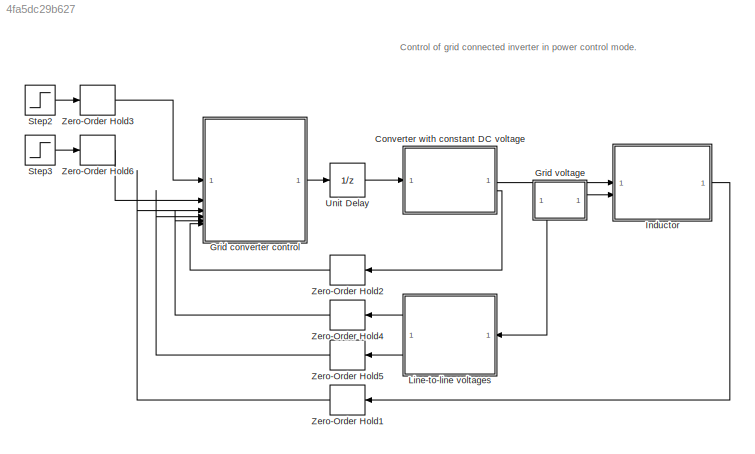
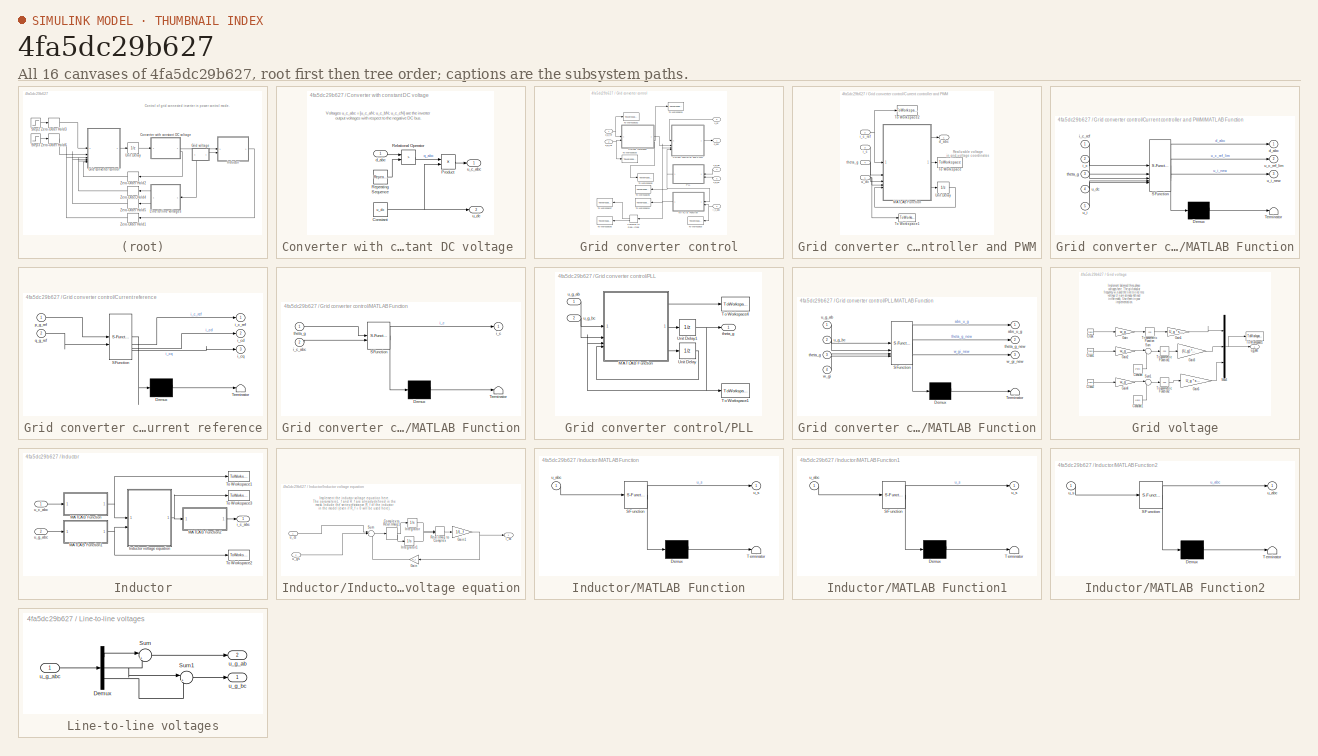
[diagram: thumbnail index - all 16 canvases of the model, root first then tree order]
MODEL slx_4fa5dc29b627
KIND model
CONFIG AbsTol = 1e-3
CONFIG EnableMultiTasking = on
CONFIG FixedStep = auto
CONFIG MaxStep = T_s
CONFIG MinStep = auto
CONFIG RelTol = 1e-3
CONFIG SampleTimeConstraint = Unconstrained
CONFIG SolverName = ode45
CONFIG StartTime = 0
CONFIG StopTime = .1
BLOCK [SubSystem] Converter with constant DC voltage 
BLOCK [Constant] Converter with constant DC voltage /Constant
  Value = u_dc
BLOCK [Product] Converter with constant DC voltage /Product
BLOCK [RelationalOperator] Converter with constant DC voltage /Relational Operator
  InputSameDT = off
  Operator = >
  OutDataTypeStr = 'double'
BLOCK [Reference] Converter with constant DC voltage /Repeating Sequence  REF=simulink/Sources/Repeating
Sequence
  SourceBlock = simulink/Sources/Repeating\nSequence
  SourceType = Repeating table
BLOCK [Inport] Converter with constant DC voltage /d_abc
BLOCK [Outport] Converter with constant DC voltage /u_c_abc
BLOCK [Outport] Converter with constant DC voltage /u_dc
  Port = 2
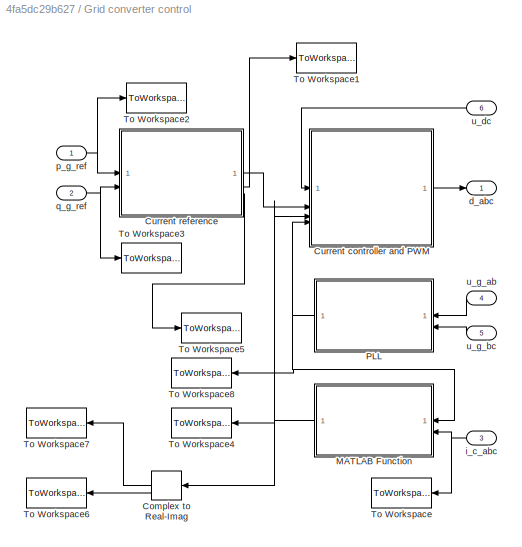
BLOCK [SubSystem] Grid converter control
BLOCK [ComplexToRealImag] Grid converter control/Complex to Real-Imag
  NameLocation = top
BLOCK [SubSystem] Grid converter control/Current controller and PWM
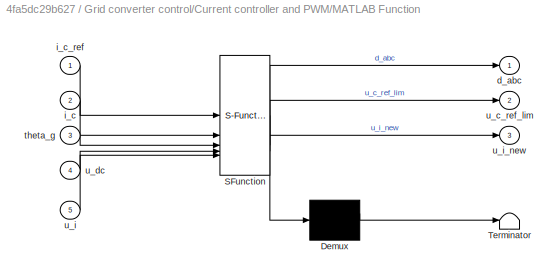
BLOCK [SubSystem] Grid converter control/Current controller and PWM/MATLAB Function
  ErrorFcn = Stateflow.Translate.translate
  PermitHierarchicalResolution = ExplicitOnly
  SFBlockType = MATLAB Function
  TreatAsAtomicUnit = on
BLOCK [Demux] Grid converter control/Current controller and PWM/MATLAB Function/ Demux 
  Outputs = 1
BLOCK [S-Function] Grid converter control/Current controller and PWM/MATLAB Function/ SFunction 
  EnableBusSupport = on
  FunctionName = sf_sfun
  Parameters = L_f,T_s,alpha_c,w_g
  PortCounts = [5 4]
  SFcnIsStateOwnerBlock = off
  SFunctionDeploymentMode = off
  Tag = Stateflow S-Function 1
BLOCK [Terminator] Grid converter control/Current controller and PWM/MATLAB Function/ Terminator 
BLOCK [Outport] Grid converter control/Current controller and PWM/MATLAB Function/d_abc
BLOCK [Inport] Grid converter control/Current controller and PWM/MATLAB Function/i_c
  Port = 2
BLOCK [Inport] Grid converter control/Current controller and PWM/MATLAB Function/i_c_ref
BLOCK [Inport] Grid converter control/Current controller and PWM/MATLAB Function/theta_g
  Port = 3
BLOCK [Outport] Grid converter control/Current controller and PWM/MATLAB Function/u_c_ref_lim
  Port = 2
BLOCK [Inport] Grid converter control/Current controller and PWM/MATLAB Function/u_dc
  Port = 4
BLOCK [Inport] Grid converter control/Current controller and PWM/MATLAB Function/u_i
  Port = 5
BLOCK [Outport] Grid converter control/Current controller and PWM/MATLAB Function/u_i_new
  Port = 3
BLOCK [ToWorkspace] Grid converter control/Current controller and PWM/To Workspace
  FixptAsFi = on
  MaxDataPoints = inf
  SampleTime = -1
  SaveFormat = Timeseries
  VariableName = u_c_ref_lim
BLOCK [ToWorkspace] Grid converter control/Current controller and PWM/To Workspace1
  MaxDataPoints = inf
  SampleTime = -1
  SaveFormat = Timeseries
  VariableName = u_dc
BLOCK [ToWorkspace] Grid converter control/Current controller and PWM/To Workspace2
  FixptAsFi = on
  MaxDataPoints = inf
  SampleTime = -1
  SaveFormat = Timeseries
  VariableName = i_c_ref
BLOCK [UnitDelay] Grid converter control/Current controller and PWM/Unit Delay
  HasFrameUpgradeWarning = on
  InitialCondition = u_gN
  SampleTime = -1
BLOCK [Outport] Grid converter control/Current controller and PWM/d_abc
  PortDimensions = 3
BLOCK [Inport] Grid converter control/Current controller and PWM/i_c
  Port = 3
BLOCK [Inport] Grid converter control/Current controller and PWM/i_c_ref
  Port = 2
BLOCK [Inport] Grid converter control/Current controller and PWM/theta_g
  Port = 4
BLOCK [Inport] Grid converter control/Current controller and PWM/u_dc
BLOCK [SubSystem] Grid converter control/Current reference
  ErrorFcn = Stateflow.Translate.translate
  PermitHierarchicalResolution = ExplicitOnly
  SFBlockType = MATLAB Function
  TreatAsAtomicUnit = on
BLOCK [Demux] Grid converter control/Current reference/ Demux 
  Outputs = 1
BLOCK [S-Function] Grid converter control/Current reference/ SFunction 
  EnableBusSupport = on
  FunctionName = sf_sfun
  Parameters = u_gN
  PortCounts = [2 4]
  SFcnIsStateOwnerBlock = off
  SFunctionDeploymentMode = off
  Tag = Stateflow S-Function 3
BLOCK [Terminator] Grid converter control/Current reference/ Terminator 
BLOCK [Outport] Grid converter control/Current reference/i_c_ref
BLOCK [Outport] Grid converter control/Current reference/i_cd
  Port = 2
BLOCK [Outport] Grid converter control/Current reference/i_cq
  Port = 3
BLOCK [Inport] Grid converter control/Current reference/p_g_ref
BLOCK [Inport] Grid converter control/Current reference/q_g_ref
  Port = 2
BLOCK [SubSystem] Grid converter control/MATLAB Function
  ErrorFcn = Stateflow.Translate.translate
  PermitHierarchicalResolution = ExplicitOnly
  SFBlockType = MATLAB Function
  TreatAsAtomicUnit = on
BLOCK [Demux] Grid converter control/MATLAB Function/ Demux 
  Outputs = 1
BLOCK [S-Function] Grid converter control/MATLAB Function/ SFunction 
  EnableBusSupport = on
  FunctionName = sf_sfun
  PortCounts = [2 2]
  SFcnIsStateOwnerBlock = off
  SFunctionDeploymentMode = off
  Tag = Stateflow S-Function 4
BLOCK [Terminator] Grid converter control/MATLAB Function/ Terminator 
BLOCK [Outport] Grid converter control/MATLAB Function/i_c
BLOCK [Inport] Grid converter control/MATLAB Function/i_c_abc
  Port = 2
BLOCK [Inport] Grid converter control/MATLAB Function/theta_g
BLOCK [SubSystem] Grid converter control/PLL
BLOCK [SubSystem] Grid converter control/PLL/MATLAB Function
  ErrorFcn = Stateflow.Translate.translate
  PermitHierarchicalResolution = ExplicitOnly
  SFBlockType = MATLAB Function
  TreatAsAtomicUnit = on
BLOCK [Demux] Grid converter control/PLL/MATLAB Function/ Demux 
  Outputs = 1
BLOCK [S-Function] Grid converter control/PLL/MATLAB Function/ SFunction 
  EnableBusSupport = on
  FunctionName = sf_sfun
  Parameters = T_s,u_gN,w0_pll
  PortCounts = [4 4]
  SFcnIsStateOwnerBlock = off
  SFunctionDeploymentMode = off
  Tag = Stateflow S-Function 2
BLOCK [Terminator] Grid converter control/PLL/MATLAB Function/ Terminator 
BLOCK [Outport] Grid converter control/PLL/MATLAB Function/abs_u_g
BLOCK [Inport] Grid converter control/PLL/MATLAB Function/theta_g
  Port = 3
BLOCK [Outport] Grid converter control/PLL/MATLAB Function/theta_g_new
  Port = 2
BLOCK [Inport] Grid converter control/PLL/MATLAB Function/u_g_ab
BLOCK [Inport] Grid converter control/PLL/MATLAB Function/u_g_bc
  Port = 2
BLOCK [Inport] Grid converter control/PLL/MATLAB Function/w_gi
  Port = 4
BLOCK [Outport] Grid converter control/PLL/MATLAB Function/w_gi_new
  Port = 3
BLOCK [ToWorkspace] Grid converter control/PLL/To Workspace1
  MaxDataPoints = inf
  SampleTime = -1
  SaveFormat = Timeseries
  VariableName = theta_ge
BLOCK [ToWorkspace] Grid converter control/PLL/To Workspace4
  FixptAsFi = on
  MaxDataPoints = inf
  SampleTime = -1
  SaveFormat = Timeseries
  VariableName = abs_u_g
BLOCK [UnitDelay] Grid converter control/PLL/Unit Delay
  HasFrameUpgradeWarning = on
  InitialCondition = w_g
  SampleTime = -1
BLOCK [UnitDelay] Grid converter control/PLL/Unit Delay1
  HasFrameUpgradeWarning = on
  SampleTime = -1
BLOCK [Outport] Grid converter control/PLL/theta_g
BLOCK [Inport] Grid converter control/PLL/u_g_ab
BLOCK [Inport] Grid converter control/PLL/u_g_bc
  Port = 2
BLOCK [ToWorkspace] Grid converter control/To Workspace
  FixptAsFi = on
  MaxDataPoints = inf
  SampleTime = -1
  SaveFormat = Timeseries
  VariableName = i_c_abc
BLOCK [ToWorkspace] Grid converter control/To Workspace1
  FixptAsFi = on
  MaxDataPoints = inf
  SampleTime = -1
  SaveFormat = Timeseries
  VariableName = i_cd_ref
BLOCK [ToWorkspace] Grid converter control/To Workspace2
  FixptAsFi = on
  MaxDataPoints = inf
  SampleTime = -1
  SaveFormat = Timeseries
  VariableName = p_g_ref
BLOCK [ToWorkspace] Grid converter control/To Workspace3
  FixptAsFi = on
  MaxDataPoints = inf
  SampleTime = -1
  SaveFormat = Timeseries
  VariableName = q_g_ref
BLOCK [ToWorkspace] Grid converter control/To Workspace4
  FixptAsFi = on
  MaxDataPoints = inf
  SampleTime = -1
  SaveFormat = Timeseries
  VariableName = i_c
BLOCK [ToWorkspace] Grid converter control/To Workspace5
  FixptAsFi = on
  MaxDataPoints = inf
  SampleTime = -1
  SaveFormat = Timeseries
  VariableName = i_cq_ref
BLOCK [ToWorkspace] Grid converter control/To Workspace6
  FixptAsFi = on
  MaxDataPoints = inf
  NameLocation = top
  SampleTime = -1
  SaveFormat = Timeseries
  VariableName = i_cq
BLOCK [ToWorkspace] Grid converter control/To Workspace7
  FixptAsFi = on
  MaxDataPoints = inf
  NameLocation = top
  SampleTime = -1
  SaveFormat = Timeseries
  VariableName = i_cd
BLOCK [ToWorkspace] Grid converter control/To Workspace8
  FixptAsFi = on
  MaxDataPoints = inf
  NameLocation = top
  SampleTime = -1
  SaveFormat = Timeseries
  VariableName = theta_g_cap
BLOCK [Outport] Grid converter control/d_abc
BLOCK [Inport] Grid converter control/i_c_abc
  Port = 3
BLOCK [Inport] Grid converter control/p_g_ref
BLOCK [Inport] Grid converter control/q_g_ref
  Port = 2
BLOCK [Inport] Grid converter control/u_dc
  Port = 6
BLOCK [Inport] Grid converter control/u_g_ab
  Port = 4
BLOCK [Inport] Grid converter control/u_g_bc
  Port = 5
BLOCK [SubSystem] Grid voltage
BLOCK [Clock] Grid voltage/Clock
BLOCK [Clock] Grid voltage/Clock1
BLOCK [Clock] Grid voltage/Clock2
BLOCK [Constant] Grid voltage/Constant
  Value = 2*pi/3
BLOCK [Constant] Grid voltage/Constant1
  Value = 4*pi/3
BLOCK [Gain] Grid voltage/Gain
  Gain = w_g
BLOCK [Gain] Grid voltage/Gain1
  Gain = U_g * sqrt(2/3)
BLOCK [Gain] Grid voltage/Gain2
  Gain = w_g
BLOCK [Gain] Grid voltage/Gain3
  Gain = (U_g) * sqrt(2/3)
BLOCK [Gain] Grid voltage/Gain4
  Gain = w_g
BLOCK [Gain] Grid voltage/Gain5
  Gain = U_g * sqrt(2/3)
BLOCK [Mux] Grid voltage/Mux3
  DisplayOption = bar
  Inputs = 3
BLOCK [Sum] Grid voltage/Sum
  Inputs = |+-
BLOCK [Sum] Grid voltage/Sum1
  Inputs = |+-
BLOCK [ToWorkspace] Grid voltage/To Workspace1
  FixptAsFi = on
  MaxDataPoints = inf
  SampleTime = -1
  SaveFormat = Timeseries
  VariableName = u_g_abc
BLOCK [Trigonometry] Grid voltage/Trigonometric Function
  Operator = cos
BLOCK [Trigonometry] Grid voltage/Trigonometric Function1
  Operator = cos
BLOCK [Trigonometry] Grid voltage/Trigonometric Function2
  Operator = cos
BLOCK [Outport] Grid voltage/u_g_abc
BLOCK [SubSystem] Inductor
BLOCK [SubSystem] Inductor/Inductor voltage equation
BLOCK [ComplexToRealImag] Inductor/Inductor voltage equation/Complex to Real-Imag1
BLOCK [Gain] Inductor/Inductor voltage equation/Gain
  Gain = R_f
  NameLocation = top
BLOCK [Gain] Inductor/Inductor voltage equation/Gain1
  Gain = 1/L_f
BLOCK [Integrator] Inductor/Inductor voltage equation/Integrator
BLOCK [Integrator] Inductor/Inductor voltage equation/Integrator1
BLOCK [RealImagToComplex] Inductor/Inductor voltage equation/Real-Imag to Complex
BLOCK [Sum] Inductor/Inductor voltage equation/Sum
  Inputs = |+--
BLOCK [Outport] Inductor/Inductor voltage equation/i_cs
BLOCK [Inport] Inductor/Inductor voltage equation/u_cs
BLOCK [Inport] Inductor/Inductor voltage equation/u_gs
  Port = 2
BLOCK [SubSystem] Inductor/MATLAB Function
  ErrorFcn = Stateflow.Translate.translate
  PermitHierarchicalResolution = ExplicitOnly
  SFBlockType = MATLAB Function
  TreatAsAtomicUnit = on
BLOCK [Demux] Inductor/MATLAB Function/ Demux 
  Outputs = 1
BLOCK [S-Function] Inductor/MATLAB Function/ SFunction 
  EnableBusSupport = on
  FunctionName = sf_sfun
  PortCounts = [1 2]
  SFcnIsStateOwnerBlock = off
  SFunctionDeploymentMode = off
  Tag = Stateflow S-Function 5
BLOCK [Terminator] Inductor/MATLAB Function/ Terminator 
BLOCK [Inport] Inductor/MATLAB Function/u_abc
BLOCK [Outport] Inductor/MATLAB Function/u_s
BLOCK [SubSystem] Inductor/MATLAB Function1
  ErrorFcn = Stateflow.Translate.translate
  PermitHierarchicalResolution = ExplicitOnly
  SFBlockType = MATLAB Function
  TreatAsAtomicUnit = on
BLOCK [Demux] Inductor/MATLAB Function1/ Demux 
  Outputs = 1
BLOCK [S-Function] Inductor/MATLAB Function1/ SFunction 
  EnableBusSupport = on
  FunctionName = sf_sfun
  PortCounts = [1 2]
  SFcnIsStateOwnerBlock = off
  SFunctionDeploymentMode = off
  Tag = Stateflow S-Function 6
BLOCK [Terminator] Inductor/MATLAB Function1/ Terminator 
BLOCK [Inport] Inductor/MATLAB Function1/u_abc
BLOCK [Outport] Inductor/MATLAB Function1/u_s
BLOCK [SubSystem] Inductor/MATLAB Function2
  ErrorFcn = Stateflow.Translate.translate
  PermitHierarchicalResolution = ExplicitOnly
  SFBlockType = MATLAB Function
  TreatAsAtomicUnit = on
BLOCK [Demux] Inductor/MATLAB Function2/ Demux 
  Outputs = 1
BLOCK [S-Function] Inductor/MATLAB Function2/ SFunction 
  EnableBusSupport = on
  FunctionName = sf_sfun
  PortCounts = [1 2]
  SFcnIsStateOwnerBlock = off
  SFunctionDeploymentMode = off
  Tag = Stateflow S-Function 7
BLOCK [Terminator] Inductor/MATLAB Function2/ Terminator 
BLOCK [Outport] Inductor/MATLAB Function2/u_abc
BLOCK [Inport] Inductor/MATLAB Function2/u_s
BLOCK [ToWorkspace] Inductor/To Workspace1
  MaxDataPoints = inf
  SaveFormat = Timeseries
  VariableName = u_cs
BLOCK [ToWorkspace] Inductor/To Workspace2
  MaxDataPoints = inf
  SaveFormat = Timeseries
  VariableName = u_gs
BLOCK [ToWorkspace] Inductor/To Workspace3
  MaxDataPoints = inf
  SaveFormat = Timeseries
  VariableName = i_cs
BLOCK [Outport] Inductor/i_c_abc
BLOCK [Inport] Inductor/u_c_abc
BLOCK [Inport] Inductor/u_g_abc
  Port = 2
BLOCK [SubSystem] Line-to-line voltages
BLOCK [Demux] Line-to-line voltages/Demux
  Outputs = 3
BLOCK [Sum] Line-to-line voltages/Sum
  Inputs = |+-
BLOCK [Sum] Line-to-line voltages/Sum1
  Inputs = |+-
BLOCK [Outport] Line-to-line voltages/u_g_ab
  Port = 2
BLOCK [Inport] Line-to-line voltages/u_g_abc
BLOCK [Outport] Line-to-line voltages/u_g_bc
BLOCK [Step] Step2
  After = 5e3
  SampleTime = T_s
  Time = 0.02
BLOCK [Step] Step3
  After = 4e3
  SampleTime = T_s
  Time = 0.04
BLOCK [UnitDelay] Unit Delay
  HasFrameUpgradeWarning = on
  SampleTime = T_s
BLOCK [ZeroOrderHold] Zero-Order Hold1
  SampleTime = T_s
BLOCK [ZeroOrderHold] Zero-Order Hold2
  SampleTime = T_s
BLOCK [ZeroOrderHold] Zero-Order Hold3
  SampleTime = T_s
BLOCK [ZeroOrderHold] Zero-Order Hold4
  SampleTime = T_s
BLOCK [ZeroOrderHold] Zero-Order Hold5
  SampleTime = T_s
BLOCK [ZeroOrderHold] Zero-Order Hold6
  SampleTime = T_s
ANNOTATION (root): Control of grid connected inverter in power control mode.
ANNOTATION Converter with constant DC voltage : Voltages u_c_abc = [u_c_aN; u_c_bN; u_c_cN] are the inverter output voltages with respect to the negative DC bus.
ANNOTATION Grid converter control/Current controller and PWM: Realizable voltage in grid-voltage coordinates
ANNOTATION Grid voltage: Implement balanced three-phase voltages here. The grid angular frequency w_g and the line-to-line rms voltage U_g are already defined in the mask. Use them in your implementation.
ANNOTATION Inductor/Inductor voltage equation: Implement the inductor voltage equation here. The parameters L_f and R_f are already defined in the mask. Include the series resistance R_f of the inductor in the model (even if R_f = 0 will be used here).
NET Converter with constant DC voltage /Constant:1 -> Converter with constant DC voltage /Product:2, Converter with constant DC voltage /u_dc:1
LINE Converter with constant DC voltage /Product:1 -> Converter with constant DC voltage /u_c_abc:1
LINE Converter with constant DC voltage /Relational Operator:1 -> Converter with constant DC voltage /Product:1
LINE Converter with constant DC voltage /Repeating Sequence:1 -> Converter with constant DC voltage /Relational Operator:2
LINE Converter with constant DC voltage /d_abc:1 -> Converter with constant DC voltage /Relational Operator:1
LINE Converter with constant DC voltage :1 -> Inductor:1
LINE Converter with constant DC voltage :2 -> Zero-Order Hold2:1
LINE Grid converter control/Complex to Real-Imag:1 -> Grid converter control/To Workspace7:1
LINE Grid converter control/Complex to Real-Imag:2 -> Grid converter control/To Workspace6:1
LINE Grid converter control/Current controller and PWM/MATLAB Function:1 -> Grid converter control/Current controller and PWM/d_abc:1
LINE Grid converter control/Current controller and PWM/MATLAB Function:2 -> Grid converter control/Current controller and PWM/To Workspace:1
LINE Grid converter control/Current controller and PWM/MATLAB Function:3 -> Grid converter control/Current controller and PWM/Unit Delay:1
LINE Grid converter control/Current controller and PWM/Unit Delay:1 -> Grid converter control/Current controller and PWM/MATLAB Function:5
LINE Grid converter control/Current controller and PWM/i_c:1 -> Grid converter control/Current controller and PWM/MATLAB Function:2
NET Grid converter control/Current controller and PWM/i_c_ref:1 -> Grid converter control/Current controller and PWM/MATLAB Function:1, Grid converter control/Current controller and PWM/To Workspace2:1
LINE Grid converter control/Current controller and PWM/theta_g:1 -> Grid converter control/Current controller and PWM/MATLAB Function:3
NET Grid converter control/Current controller and PWM/u_dc:1 -> Grid converter control/Current controller and PWM/MATLAB Function:4, Grid converter control/Current controller and PWM/To Workspace1:1
LINE Grid converter control/Current controller and PWM:1 -> Grid converter control/d_abc:1
LINE Grid converter control/Current reference:1 -> Grid converter control/Current controller and PWM:2
LINE Grid converter control/Current reference:2 -> Grid converter control/To Workspace1:1
LINE Grid converter control/Current reference:3 -> Grid converter control/To Workspace5:1
NET Grid converter control/MATLAB Function:1 -> Grid converter control/Complex to Real-Imag:1, Grid converter control/Current controller and PWM:3, Grid converter control/To Workspace4:1
LINE Grid converter control/PLL/MATLAB Function:1 -> Grid converter control/PLL/To Workspace4:1
LINE Grid converter control/PLL/MATLAB Function:2 -> Grid converter control/PLL/Unit Delay1:1
LINE Grid converter control/PLL/MATLAB Function:3 -> Grid converter control/PLL/Unit Delay:1
NET Grid converter control/PLL/Unit Delay1:1 -> Grid converter control/PLL/MATLAB Function:3, Grid converter control/PLL/To Workspace1:1, Grid converter control/PLL/theta_g:1
LINE Grid converter control/PLL/Unit Delay:1 -> Grid converter control/PLL/MATLAB Function:4
LINE Grid converter control/PLL/u_g_ab:1 -> Grid converter control/PLL/MATLAB Function:1
LINE Grid converter control/PLL/u_g_bc:1 -> Grid converter control/PLL/MATLAB Function:2
NET Grid converter control/PLL:1 -> Grid converter control/Current controller and PWM:4, Grid converter control/MATLAB Function:1, Grid converter control/To Workspace8:1
NET Grid converter control/i_c_abc:1 -> Grid converter control/MATLAB Function:2, Grid converter control/To Workspace:1
NET Grid converter control/p_g_ref:1 -> Grid converter control/Current reference:1, Grid converter control/To Workspace2:1
NET Grid converter control/q_g_ref:1 -> Grid converter control/Current reference:2, Grid converter control/To Workspace3:1
LINE Grid converter control/u_dc:1 -> Grid converter control/Current controller and PWM:1
LINE Grid converter control/u_g_ab:1 -> Grid converter control/PLL:1
LINE Grid converter control/u_g_bc:1 -> Grid converter control/PLL:2
LINE Grid converter control:1 -> Unit Delay:1
LINE Grid voltage/Clock1:1 -> Grid voltage/Gain2:1
LINE Grid voltage/Clock2:1 -> Grid voltage/Gain4:1
LINE Grid voltage/Clock:1 -> Grid voltage/Gain:1
LINE Grid voltage/Constant1:1 -> Grid voltage/Sum1:2
LINE Grid voltage/Constant:1 -> Grid voltage/Sum:2
LINE Grid voltage/Gain1:1 -> Grid voltage/Mux3:1
LINE Grid voltage/Gain2:1 -> Grid voltage/Sum:1
LINE Grid voltage/Gain3:1 -> Grid voltage/Mux3:2
LINE Grid voltage/Gain4:1 -> Grid voltage/Sum1:1
LINE Grid voltage/Gain5:1 -> Grid voltage/Mux3:3
LINE Grid voltage/Gain:1 -> Grid voltage/Trigonometric Function:1
NET Grid voltage/Mux3:1 -> Grid voltage/To Workspace1:1, Grid voltage/u_g_abc:1
LINE Grid voltage/Sum1:1 -> Grid voltage/Trigonometric Function2:1
LINE Grid voltage/Sum:1 -> Grid voltage/Trigonometric Function1:1
LINE Grid voltage/Trigonometric Function1:1 -> Grid voltage/Gain3:1
LINE Grid voltage/Trigonometric Function2:1 -> Grid voltage/Gain5:1
LINE Grid voltage/Trigonometric Function:1 -> Grid voltage/Gain1:1
NET Grid voltage:1 -> Inductor:2, Line-to-line voltages:1
LINE Inductor/Inductor voltage equation/Complex to Real-Imag1:1 -> Inductor/Inductor voltage equation/Integrator:1
LINE Inductor/Inductor voltage equation/Complex to Real-Imag1:2 -> Inductor/Inductor voltage equation/Integrator1:1
NET Inductor/Inductor voltage equation/Gain1:1 -> Inductor/Inductor voltage equation/Gain:1, Inductor/Inductor voltage equation/i_cs:1
LINE Inductor/Inductor voltage equation/Gain:1 -> Inductor/Inductor voltage equation/Sum:3
LINE Inductor/Inductor voltage equation/Integrator1:1 -> Inductor/Inductor voltage equation/Real-Imag to Complex:2
LINE Inductor/Inductor voltage equation/Integrator:1 -> Inductor/Inductor voltage equation/Real-Imag to Complex:1
LINE Inductor/Inductor voltage equation/Real-Imag to Complex:1 -> Inductor/Inductor voltage equation/Gain1:1
LINE Inductor/Inductor voltage equation/Sum:1 -> Inductor/Inductor voltage equation/Complex to Real-Imag1:1
LINE Inductor/Inductor voltage equation/u_cs:1 -> Inductor/Inductor voltage equation/Sum:1
LINE Inductor/Inductor voltage equation/u_gs:1 -> Inductor/Inductor voltage equation/Sum:2
NET Inductor/Inductor voltage equation:1 -> Inductor/MATLAB Function2:1, Inductor/To Workspace3:1
NET Inductor/MATLAB Function1:1 -> Inductor/Inductor voltage equation:2, Inductor/To Workspace2:1
LINE Inductor/MATLAB Function2:1 -> Inductor/i_c_abc:1
NET Inductor/MATLAB Function:1 -> Inductor/Inductor voltage equation:1, Inductor/To Workspace1:1
LINE Inductor/u_c_abc:1 -> Inductor/MATLAB Function:1
LINE Inductor/u_g_abc:1 -> Inductor/MATLAB Function1:1
LINE Inductor:1 -> Zero-Order Hold1:1
LINE Line-to-line voltages/Demux:1 -> Line-to-line voltages/Sum:1
NET Line-to-line voltages/Demux:2 -> Line-to-line voltages/Sum1:1, Line-to-line voltages/Sum:2
LINE Line-to-line voltages/Demux:3 -> Line-to-line voltages/Sum1:2
LINE Line-to-line voltages/Sum1:1 -> Line-to-line voltages/u_g_bc:1
LINE Line-to-line voltages/Sum:1 -> Line-to-line voltages/u_g_ab:1
LINE Line-to-line voltages/u_g_abc:1 -> Line-to-line voltages/Demux:1
LINE Line-to-line voltages:1 -> Zero-Order Hold4:1
LINE Line-to-line voltages:2 -> Zero-Order Hold5:1
LINE Step2:1 -> Zero-Order Hold3:1
LINE Step3:1 -> Zero-Order Hold6:1
LINE Unit Delay:1 -> Converter with constant DC voltage :1
LINE Zero-Order Hold1:1 -> Grid converter control:3
LINE Zero-Order Hold2:1 -> Grid converter control:6
LINE Zero-Order Hold3:1 -> Grid converter control:1
LINE Zero-Order Hold4:1 -> Grid converter control:5
LINE Zero-Order Hold5:1 -> Grid converter control:4
LINE Zero-Order Hold6:1 -> Grid converter control:2
note: NET lines group one-source signal fan-out (src -> all destinations, sorted); 1:1 wires keep LINE
CHART Grid converter control/Current controller and PWM/MATLAB Function states=1 transitions=1
  STATE_LABEL 'eML_blk_kernel()'
  STATE_LABEL 'SCRIPT:\nfunction [d_abc, u_c_ref_lim, u_i_new] = cc(i_c_ref, i_c, ...\n    theta_g, u_dc, u_i, w_g, L_f, alpha_c, T_s)\n\n%% Current controller \n% Gains\nk_i = alpha_c^2*L_f;                % Integral gain\nk_t = alpha_c*L_f;                  % Reference gain\nk_p = (2*alpha_c - 1j*w_g)*L_f;     % Proportional gain\n\n% Voltage reference in synchronous coordinates\nu_c_ref = k_t*i_c_ref - k_p*i_c + u_i;\n\n%...<+1571ch>'
CHART Grid converter control/PLL/MATLAB Function states=1 transitions=1
  STATE_LABEL 'eML_blk_kernel()'
  STATE_LABEL 'SCRIPT:\nfunction [abs_u_g, theta_g_new, w_gi_new] = pll(u_g_ab, u_g_bc, ...\n    theta_g, w_gi, u_gN, w0_pll, T_s)\n\n% Parameters \n% (Tuning of the PLL is analogous to that of the DC-voltage controller.)\nzeta = 1;   % Damping ratio\nk_p = 2*zeta*w0_pll/u_gN; \nk_i = w0_pll^2/u_gN;\n\n% Space-vector transformation from line-to-line components\nu_gs = 2/3 *(u_g_ab - u_g_bc*exp(1i *4*pi/3));  % Complete thi...<+550ch>'
CHART Grid converter control/Current reference states=1 transitions=1
  STATE_LABEL 'eML_blk_kernel()'
  STATE_LABEL 'SCRIPT:\nfunction [i_c_ref,i_cd, i_cq] = curr_ref(p_g_ref, q_g_ref, u_gN)\n\n% Current references in grid-voltage coordinates\ni_cd = 2/3*p_g_ref/u_gN;\ni_cq= -2/3*q_g_ref/u_gN;\ni_c_ref = i_cd + j*i_cq; % Complete this\n\n'
CHART Grid converter control/MATLAB Function states=1 transitions=1
  STATE_LABEL 'eML_blk_kernel()'
  STATE_LABEL 'SCRIPT:\nfunction i_c = abc2dq(theta_g, i_c_abc)\n\n% Space-vector transformation\ni_cs = 2/3*(i_c_abc(1) + i_c_abc(2)*exp(1j*2*pi/3) ...\n    + i_c_abc(3)*exp(1j*4*pi/3));\n\n% Coordinate transformation\ni_c = i_cs*exp(-1j*theta_g);'
CHART Inductor/MATLAB Function states=1 transitions=1
  STATE_LABEL 'eML_blk_kernel()'
  STATE_LABEL 'SCRIPT:\nfunction u_s = abc2s(u_abc)\n\n% Space-vector transformation\nu_s = 2/3*(u_abc(1) + u_abc(2)*exp(1j*2*pi/3) + u_abc(3)*exp(1j*4*pi/3));\n'
CHART Inductor/MATLAB Function1 states=1 transitions=1
  STATE_LABEL 'eML_blk_kernel()'
  STATE_LABEL 'SCRIPT:\nfunction u_s = abc2s(u_abc)\n\n% Space-vector transformation\nu_s = 2/3*(u_abc(1) + u_abc(2)*exp(1j*2*pi/3) + u_abc(3)*exp(1j*4*pi/3));\n'
CHART Inductor/MATLAB Function2 states=1 transitions=1
  STATE_LABEL 'eML_blk_kernel()'
  STATE_LABEL 'SCRIPT:\nfunction u_abc = s2abc(u_s)\n\n% Inverse space-vector transformation\nu_abc = real([1; exp(-1j*2*pi/3); exp(-1j*4*pi/3)]*u_s);\n'
CHART  states=0 transitions=0
CHART  states=0 transitions=0
CHART  states=0 transitions=0
CHART  states=0 transitions=0
CHART  states=0 transitions=0
CHART  states=0 transitions=0
CHART  states=0 transitions=0
